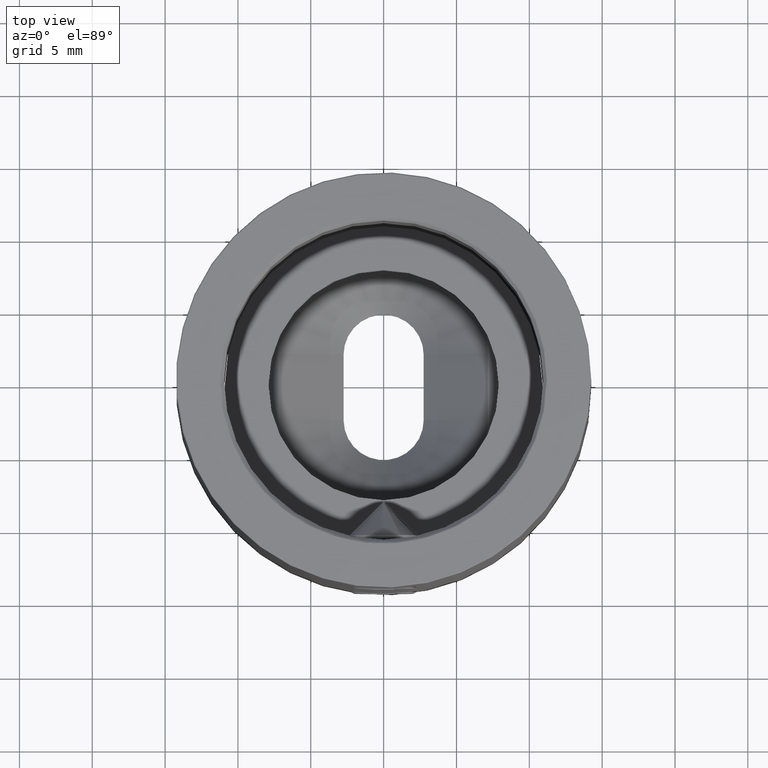
[diagram: clean part render]
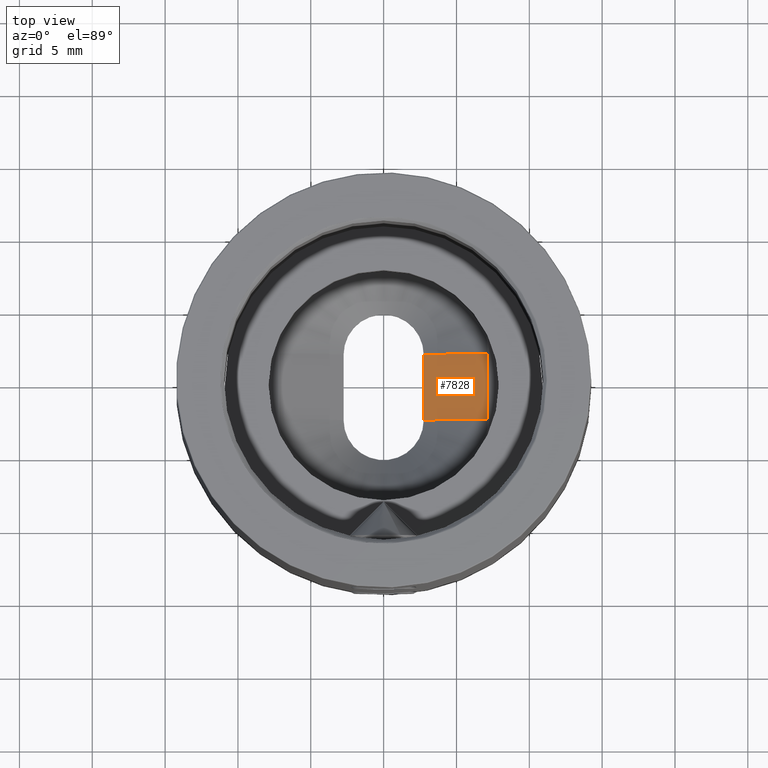
[diagram: same view with one face highlighted and labeled with its STEP entity id]
A machine part, top view. The second image highlights one B-rep face of the part: STEP entity #7828.
In plain terms, the highlighted planar face has unit normal (0.7071, 0, -0.7071).
Its self-contained STEP definition (entity closure, byte-faithful):
#91 = CARTESIAN_POINT ( 'NONE',  ( 2.749999999999999556, -2.250000000000000000, 1.700000000000000178 ) ) ;
#446 = DIRECTION ( 'NONE',  ( -0.7071067811865475727, 0.000000000000000000, -0.7071067811865474617 ) ) ;
#505 = PLANE ( 'NONE',  #4835 ) ;
#1107 = VERTEX_POINT ( 'NONE', #14300 ) ;
#1837 = VERTEX_POINT ( 'NONE', #14215 ) ;
#3269 = VERTEX_POINT ( 'NONE', #91 ) ;
#3635 = EDGE_CURVE ( 'NONE', #3269, #13031, #13616, .T. ) ;
#4426 = LINE ( 'NONE', #11788, #10954 ) ;
#4517 = EDGE_CURVE ( 'NONE', #1107, #3269, #11178, .T. ) ;
#4835 = AXIS2_PLACEMENT_3D ( 'NONE', #10203, #8838, #446 ) ;
#4847 = CARTESIAN_POINT ( 'NONE',  ( 7.150000000000004796, -2.249999999999999556, 6.099999999999999645 ) ) ;
#4971 = ORIENTED_EDGE ( 'NONE', *, *, #3635, .F. ) ;
#5227 = CARTESIAN_POINT ( 'NONE',  ( 2.749999999999999556, -2.250000000000000444, 1.700000000000000178 ) ) ;
#5736 = ORIENTED_EDGE ( 'NONE', *, *, #15354, .T. ) ;
#7335 = EDGE_CURVE ( 'NONE', #1837, #13031, #4426, .T. ) ;
#7828 = ADVANCED_FACE ( 'NONE', ( #14140 ), #505, .F. ) ;
#8218 = LINE ( 'NONE', #4847, #15508 ) ;
#8750 = VECTOR ( 'NONE', #10511, 1000.000000000000000 ) ;
#8838 = DIRECTION ( 'NONE',  ( 0.7071067811865474617, 1.149970062512530480E-16, -0.7071067811865475727 ) ) ;
#8997 = ORIENTED_EDGE ( 'NONE', *, *, #4517, .F. ) ;
#9150 = ORIENTED_EDGE ( 'NONE', *, *, #7335, .T. ) ;
#10203 = CARTESIAN_POINT ( 'NONE',  ( 2.749999999999999556, -2.250000000000000444, 1.700000000000000178 ) ) ;
#10511 = DIRECTION ( 'NONE',  ( -1.626303258728256651E-16, 1.000000000000000000, -0.000000000000000000 ) ) ;
#10954 = VECTOR ( 'NONE', #12943, 1000.000000000000000 ) ;
#11112 = CARTESIAN_POINT ( 'NONE',  ( 2.749999999999998668, 2.250000000000000888, 1.700000000000000178 ) ) ;
#11178 = LINE ( 'NONE', #5227, #13807 ) ;
#11788 = CARTESIAN_POINT ( 'NONE',  ( 2.749999999999998668, 2.250000000000000444, 1.700000000000000178 ) ) ;
#12943 = DIRECTION ( 'NONE',  ( -0.7071067811865475727, 0.000000000000000000, -0.7071067811865474617 ) ) ;
#13031 = VERTEX_POINT ( 'NONE', #11112 ) ;
#13184 = DIRECTION ( 'NONE',  ( -1.626303258728256651E-16, 1.000000000000000000, -0.000000000000000000 ) ) ;
#13580 = DIRECTION ( 'NONE',  ( -0.7071067811865475727, 0.000000000000000000, -0.7071067811865474617 ) ) ;
#13616 = LINE ( 'NONE', #14135, #8750 ) ;
#13807 = VECTOR ( 'NONE', #13580, 1000.000000000000000 ) ;
#14135 = CARTESIAN_POINT ( 'NONE',  ( 2.749999999999999556, -2.250000000000000000, 1.700000000000000178 ) ) ;
#14140 = FACE_OUTER_BOUND ( 'NONE', #14776, .T. ) ;
#14215 = CARTESIAN_POINT ( 'NONE',  ( 7.150000000000003908, 2.250000000000001332, 6.099999999999999645 ) ) ;
#14300 = CARTESIAN_POINT ( 'NONE',  ( 7.150000000000000355, -2.250000000000000444, 6.100000000000000533 ) ) ;
#14776 = EDGE_LOOP ( 'NONE', ( #9150, #4971, #8997, #5736 ) ) ;
#15354 = EDGE_CURVE ( 'NONE', #1107, #1837, #8218, .T. ) ;
#15508 = VECTOR ( 'NONE', #13184, 1000.000000000000000 ) ;